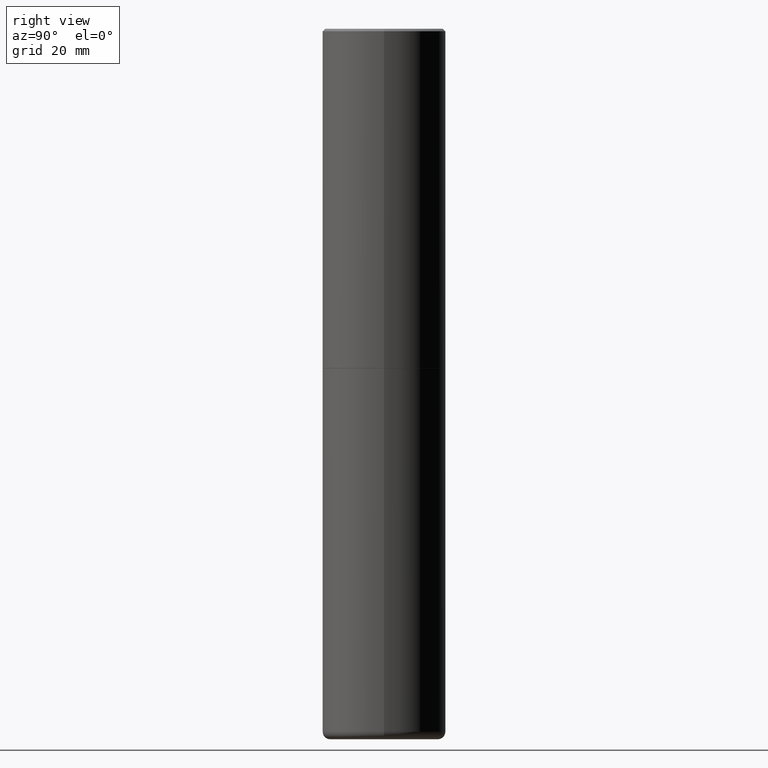
[diagram: clean part render]
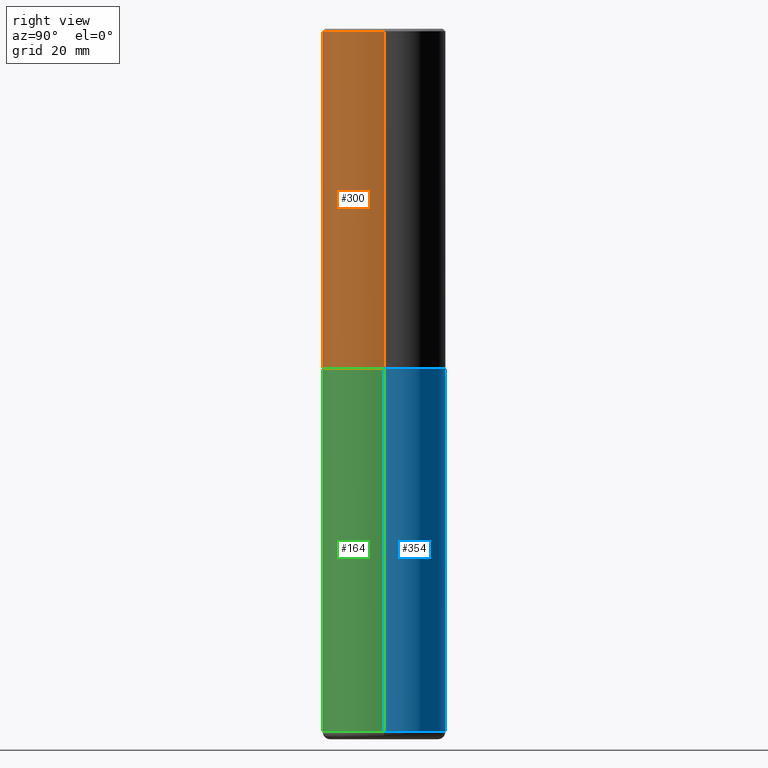
[diagram: same view with three faces highlighted in distinct colors, each labeled with its STEP entity id]
A machine part, right view with three faces highlighted in distinct colors.
Their STEP definitions:

[orange] entity #300 — the highlighted cylindrical surface (partial cylindrical patch) has radius 12.7 mm, axis along (-0, 0, 1).
#14 = EDGE_CURVE ( 'NONE', #102, #51, #203, .T. ) ;
#24 = ORIENTED_EDGE ( 'NONE', *, *, #241, .F. ) ;
#25 = CARTESIAN_POINT ( 'NONE',  ( 4.890937612370299433E-31, -6.982962677686328587E-17, -0.02000000000000010797 ) ) ;
#51 = VERTEX_POINT ( 'NONE', #83 ) ;
#83 = CARTESIAN_POINT ( 'NONE',  ( 0.5000000000000000000, -3.500078625662629079E-15, -0.02000000000000010797 ) ) ;
#94 = DIRECTION ( 'NONE',  ( -2.445468806185136877E-29, 3.491481338843145188E-15, 1.000000000000000000 ) ) ;
#102 = VERTEX_POINT ( 'NONE', #345 ) ;
#103 = EDGE_CURVE ( 'NONE', #151, #102, #407, .T. ) ;
#112 = ORIENTED_EDGE ( 'NONE', *, *, #157, .F. ) ;
#120 = VECTOR ( 'NONE', #400, 39.37007874015748143 ) ;
#129 = FACE_OUTER_BOUND ( 'NONE', #233, .T. ) ;
#134 = AXIS2_PLACEMENT_3D ( 'NONE', #348, #155, #153 ) ;
#135 = VECTOR ( 'NONE', #94, 39.37007874015748143 ) ;
#151 = VERTEX_POINT ( 'NONE', #186 ) ;
#153 = DIRECTION ( 'NONE',  ( 1.000000000000000000, -6.982962677686265922E-15, 0.000000000000000000 ) ) ;
#155 = DIRECTION ( 'NONE',  ( -2.445468806185136597E-29, 3.491481338843145583E-15, 1.000000000000000000 ) ) ;
#157 = EDGE_CURVE ( 'NONE', #176, #51, #346, .T. ) ;
#176 = VERTEX_POINT ( 'NONE', #411 ) ;
#183 = DIRECTION ( 'NONE',  ( 1.000000000000000000, -6.982962677686266711E-15, 0.000000000000000000 ) ) ;
#186 = CARTESIAN_POINT ( 'NONE',  ( -0.5000000000000003331, -1.281242234827828821E-15, -2.748999999999999666 ) ) ;
#194 = CARTESIAN_POINT ( 'NONE',  ( 0.000000000000000000, 0.000000000000000000, 0.000000000000000000 ) ) ;
#198 = AXIS2_PLACEMENT_3D ( 'NONE', #194, #355, #417 ) ;
#203 = LINE ( 'NONE', #275, #120 ) ;
#231 = ORIENTED_EDGE ( 'NONE', *, *, #103, .T. ) ;
#233 = EDGE_LOOP ( 'NONE', ( #24, #231, #382, #112 ) ) ;
#241 = EDGE_CURVE ( 'NONE', #151, #176, #278, .T. ) ;
#263 = AXIS2_PLACEMENT_3D ( 'NONE', #25, #313, #183 ) ;
#275 = CARTESIAN_POINT ( 'NONE',  ( 0.5000000000000001110, -3.491481338843134539E-15, 2.438088387897968457E-29 ) ) ;
#278 = LINE ( 'NONE', #406, #135 ) ;
#300 = ADVANCED_FACE ( 'NONE', ( #129 ), #384, .T. ) ;
#313 = DIRECTION ( 'NONE',  ( -2.445468806185136597E-29, 3.491481338843145583E-15, 1.000000000000000000 ) ) ;
#345 = CARTESIAN_POINT ( 'NONE',  ( 0.5000000000000003331, -1.308956353932294179E-14, -2.748999999999999666 ) ) ;
#346 = CIRCLE ( 'NONE', #263, 0.5000000000000000000 ) ;
#348 = CARTESIAN_POINT ( 'NONE',  ( 6.722593748202938917E-29, -9.598082200479805274E-15, -2.748999999999999666 ) ) ;
#355 = DIRECTION ( 'NONE',  ( -2.445468806185136597E-29, 3.491481338843145583E-15, 1.000000000000000000 ) ) ;
#382 = ORIENTED_EDGE ( 'NONE', *, *, #14, .T. ) ;
#384 = CYLINDRICAL_SURFACE ( 'NONE', #198, 0.5000000000000001110 ) ;
#400 = DIRECTION ( 'NONE',  ( -2.445468806185136877E-29, 3.491481338843145188E-15, 1.000000000000000000 ) ) ;
#406 = CARTESIAN_POINT ( 'NONE',  ( -0.5000000000000001110, 3.552713678800501718E-15, -2.459467545127453732E-29 ) ) ;
#407 = CIRCLE ( 'NONE', #134, 0.5000000000000003331 ) ;
#411 = CARTESIAN_POINT ( 'NONE',  ( -0.5000000000000000000, 3.421651712066270057E-15, -0.02000000000000010797 ) ) ;
#417 = DIRECTION ( 'NONE',  ( 1.000000000000000000, -6.982962677686267499E-15, 4.876176775795935793E-29 ) ) ;

[blue] entity #354 — the highlighted cylindrical surface (partial cylindrical patch) has radius 12.7 mm, axis along (-0, 0, 1).
#4 = VERTEX_POINT ( 'NONE', #238 ) ;
#12 = VERTEX_POINT ( 'NONE', #180 ) ;
#19 = AXIS2_PLACEMENT_3D ( 'NONE', #212, #280, #405 ) ;
#20 = VECTOR ( 'NONE', #323, 39.37007874015748143 ) ;
#41 = DIRECTION ( 'NONE',  ( -2.445468806185136877E-29, 3.491481338843145188E-15, 1.000000000000000000 ) ) ;
#89 = VERTEX_POINT ( 'NONE', #249 ) ;
#96 = DIRECTION ( 'NONE',  ( -2.445468806185136597E-29, 3.491481338843145583E-15, 1.000000000000000000 ) ) ;
#104 = CARTESIAN_POINT ( 'NONE',  ( -0.5000000000000000000, 3.552713678800500929E-15, -2.459467545127452891E-29 ) ) ;
#107 = FACE_OUTER_BOUND ( 'NONE', #217, .T. ) ;
#109 = ORIENTED_EDGE ( 'NONE', *, *, #368, .F. ) ;
#114 = AXIS2_PLACEMENT_3D ( 'NONE', #373, #96, #315 ) ;
#122 = CARTESIAN_POINT ( 'NONE',  ( -0.5000000000000002220, -1.631381513921699223E-14, -5.689999999999999503 ) ) ;
#126 = VECTOR ( 'NONE', #41, 39.37007874015748143 ) ;
#167 = CYLINDRICAL_SURFACE ( 'NONE', #387, 0.5000000000000000000 ) ;
#180 = CARTESIAN_POINT ( 'NONE',  ( -0.5000000000000000000, -1.118133757111757137E-14, -2.749999999999999556 ) ) ;
#191 = EDGE_CURVE ( 'NONE', #89, #12, #320, .T. ) ;
#205 = VERTEX_POINT ( 'NONE', #122 ) ;
#212 = CARTESIAN_POINT ( 'NONE',  ( 6.725039217009123399E-29, -9.601573681818648281E-15, -2.749999999999999556 ) ) ;
#217 = EDGE_LOOP ( 'NONE', ( #367, #294, #394, #109 ) ) ;
#224 = DIRECTION ( 'NONE',  ( 1.000000000000000000, -6.982962677686266711E-15, 4.876176775795935793E-29 ) ) ;
#229 = EDGE_CURVE ( 'NONE', #4, #205, #288, .T. ) ;
#238 = CARTESIAN_POINT ( 'NONE',  ( 0.5000000000000002220, -2.335801015686062967E-14, -5.689999999999999503 ) ) ;
#249 = CARTESIAN_POINT ( 'NONE',  ( 0.5000000000000000000, -1.309305502066178164E-14, -2.749999999999999556 ) ) ;
#280 = DIRECTION ( 'NONE',  ( -2.445468806185136597E-29, 3.491481338843145583E-15, 1.000000000000000000 ) ) ;
#284 = CARTESIAN_POINT ( 'NONE',  ( 0.5000000000000000000, -3.491481338843133355E-15, 2.438088387897967896E-29 ) ) ;
#288 = CIRCLE ( 'NONE', #114, 0.4999999999999999445 ) ;
#294 = ORIENTED_EDGE ( 'NONE', *, *, #331, .T. ) ;
#315 = DIRECTION ( 'NONE',  ( 1.000000000000000000, -6.982962677686263555E-15, 0.000000000000000000 ) ) ;
#320 = CIRCLE ( 'NONE', #19, 0.5000000000000000000 ) ;
#323 = DIRECTION ( 'NONE',  ( -2.445468806185136877E-29, 3.491481338843145188E-15, 1.000000000000000000 ) ) ;
#325 = LINE ( 'NONE', #284, #126 ) ;
#331 = EDGE_CURVE ( 'NONE', #205, #12, #389, .T. ) ;
#354 = ADVANCED_FACE ( 'NONE', ( #107 ), #167, .T. ) ;
#357 = CARTESIAN_POINT ( 'NONE',  ( 0.000000000000000000, 0.000000000000000000, 0.000000000000000000 ) ) ;
#367 = ORIENTED_EDGE ( 'NONE', *, *, #229, .T. ) ;
#368 = EDGE_CURVE ( 'NONE', #4, #89, #325, .T. ) ;
#373 = CARTESIAN_POINT ( 'NONE',  ( 1.391471750719342616E-28, -1.986652881801749632E-14, -5.689999999999999503 ) ) ;
#387 = AXIS2_PLACEMENT_3D ( 'NONE', #357, #418, #224 ) ;
#389 = LINE ( 'NONE', #104, #20 ) ;
#394 = ORIENTED_EDGE ( 'NONE', *, *, #191, .F. ) ;
#405 = DIRECTION ( 'NONE',  ( 1.000000000000000000, -6.982962677686266711E-15, 0.000000000000000000 ) ) ;
#418 = DIRECTION ( 'NONE',  ( -2.445468806185136597E-29, 3.491481338843145583E-15, 1.000000000000000000 ) ) ;

[green] entity #164 — the highlighted cylindrical surface (partial cylindrical patch) has radius 12.7 mm, axis along (-0, 0, 1).
#4 = VERTEX_POINT ( 'NONE', #238 ) ;
#12 = VERTEX_POINT ( 'NONE', #180 ) ;
#20 = VECTOR ( 'NONE', #323, 39.37007874015748143 ) ;
#21 = CARTESIAN_POINT ( 'NONE',  ( 0.000000000000000000, 0.000000000000000000, 0.000000000000000000 ) ) ;
#23 = EDGE_CURVE ( 'NONE', #12, #89, #223, .T. ) ;
#34 = ORIENTED_EDGE ( 'NONE', *, *, #368, .T. ) ;
#38 = CARTESIAN_POINT ( 'NONE',  ( 1.391471750719342616E-28, -1.986652881801749632E-14, -5.689999999999999503 ) ) ;
#41 = DIRECTION ( 'NONE',  ( -2.445468806185136877E-29, 3.491481338843145188E-15, 1.000000000000000000 ) ) ;
#44 = DIRECTION ( 'NONE',  ( -2.445468806185136597E-29, 3.491481338843145583E-15, 1.000000000000000000 ) ) ;
#56 = ORIENTED_EDGE ( 'NONE', *, *, #356, .T. ) ;
#61 = AXIS2_PLACEMENT_3D ( 'NONE', #38, #72, #197 ) ;
#72 = DIRECTION ( 'NONE',  ( -2.445468806185136597E-29, 3.491481338843145583E-15, 1.000000000000000000 ) ) ;
#89 = VERTEX_POINT ( 'NONE', #249 ) ;
#91 = FACE_OUTER_BOUND ( 'NONE', #172, .T. ) ;
#92 = AXIS2_PLACEMENT_3D ( 'NONE', #21, #150, #276 ) ;
#104 = CARTESIAN_POINT ( 'NONE',  ( -0.5000000000000000000, 3.552713678800500929E-15, -2.459467545127452891E-29 ) ) ;
#122 = CARTESIAN_POINT ( 'NONE',  ( -0.5000000000000002220, -1.631381513921699223E-14, -5.689999999999999503 ) ) ;
#126 = VECTOR ( 'NONE', #41, 39.37007874015748143 ) ;
#150 = DIRECTION ( 'NONE',  ( -2.445468806185136597E-29, 3.491481338843145583E-15, 1.000000000000000000 ) ) ;
#164 = ADVANCED_FACE ( 'NONE', ( #91 ), #189, .T. ) ;
#172 = EDGE_LOOP ( 'NONE', ( #301, #56, #34, #318 ) ) ;
#180 = CARTESIAN_POINT ( 'NONE',  ( -0.5000000000000000000, -1.118133757111757137E-14, -2.749999999999999556 ) ) ;
#189 = CYLINDRICAL_SURFACE ( 'NONE', #92, 0.5000000000000000000 ) ;
#197 = DIRECTION ( 'NONE',  ( 1.000000000000000000, -6.982962677686263555E-15, 0.000000000000000000 ) ) ;
#205 = VERTEX_POINT ( 'NONE', #122 ) ;
#223 = CIRCLE ( 'NONE', #242, 0.5000000000000000000 ) ;
#238 = CARTESIAN_POINT ( 'NONE',  ( 0.5000000000000002220, -2.335801015686062967E-14, -5.689999999999999503 ) ) ;
#239 = DIRECTION ( 'NONE',  ( 1.000000000000000000, -6.982962677686266711E-15, 0.000000000000000000 ) ) ;
#242 = AXIS2_PLACEMENT_3D ( 'NONE', #270, #44, #239 ) ;
#249 = CARTESIAN_POINT ( 'NONE',  ( 0.5000000000000000000, -1.309305502066178164E-14, -2.749999999999999556 ) ) ;
#270 = CARTESIAN_POINT ( 'NONE',  ( 6.725039217009123399E-29, -9.601573681818648281E-15, -2.749999999999999556 ) ) ;
#276 = DIRECTION ( 'NONE',  ( 1.000000000000000000, -6.982962677686266711E-15, 4.876176775795935793E-29 ) ) ;
#284 = CARTESIAN_POINT ( 'NONE',  ( 0.5000000000000000000, -3.491481338843133355E-15, 2.438088387897967896E-29 ) ) ;
#301 = ORIENTED_EDGE ( 'NONE', *, *, #331, .F. ) ;
#318 = ORIENTED_EDGE ( 'NONE', *, *, #23, .F. ) ;
#323 = DIRECTION ( 'NONE',  ( -2.445468806185136877E-29, 3.491481338843145188E-15, 1.000000000000000000 ) ) ;
#325 = LINE ( 'NONE', #284, #126 ) ;
#331 = EDGE_CURVE ( 'NONE', #205, #12, #389, .T. ) ;
#356 = EDGE_CURVE ( 'NONE', #205, #4, #365, .T. ) ;
#365 = CIRCLE ( 'NONE', #61, 0.4999999999999999445 ) ;
#368 = EDGE_CURVE ( 'NONE', #4, #89, #325, .T. ) ;
#389 = LINE ( 'NONE', #104, #20 ) ;